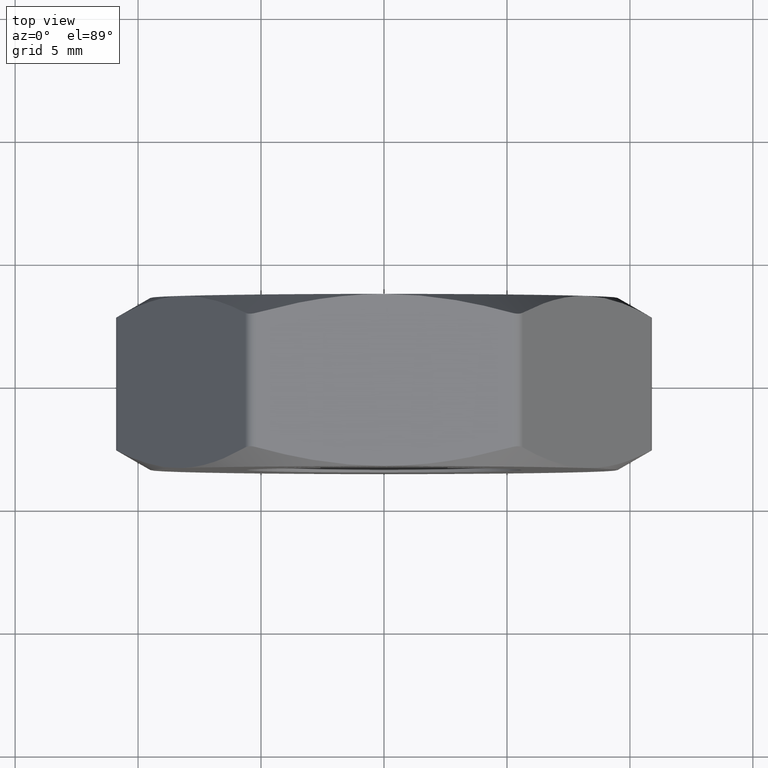
[diagram: clean part render]
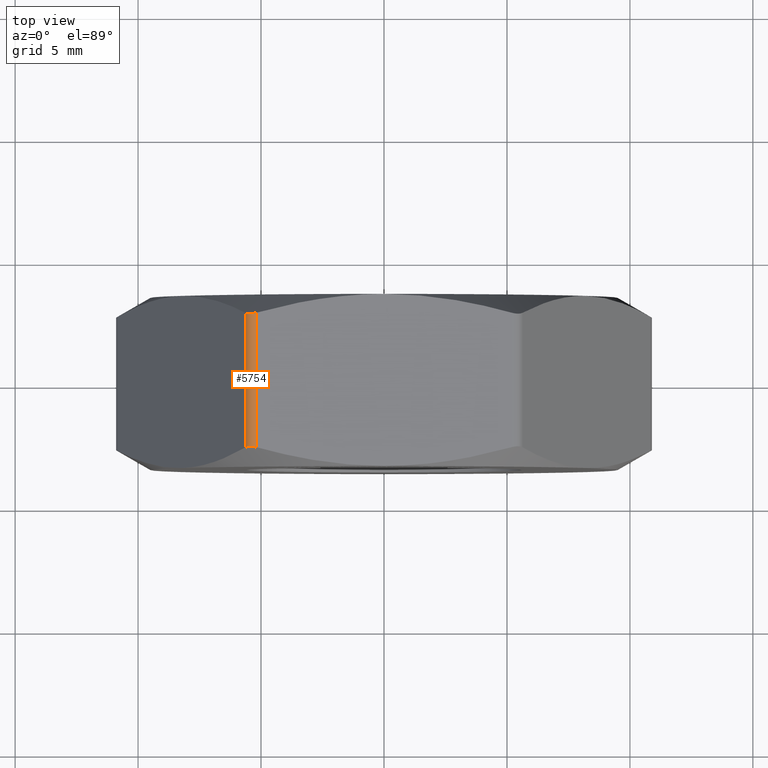
[diagram: same view with one face highlighted and labeled with its STEP entity id]
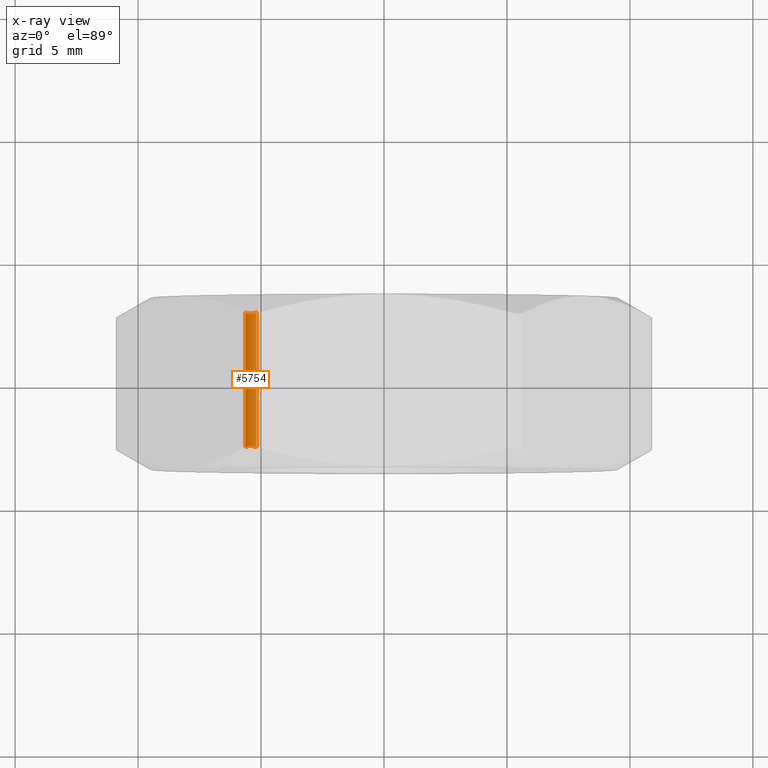
[diagram: x-ray of the same camera — body ghosted, the highlighted face saturated]
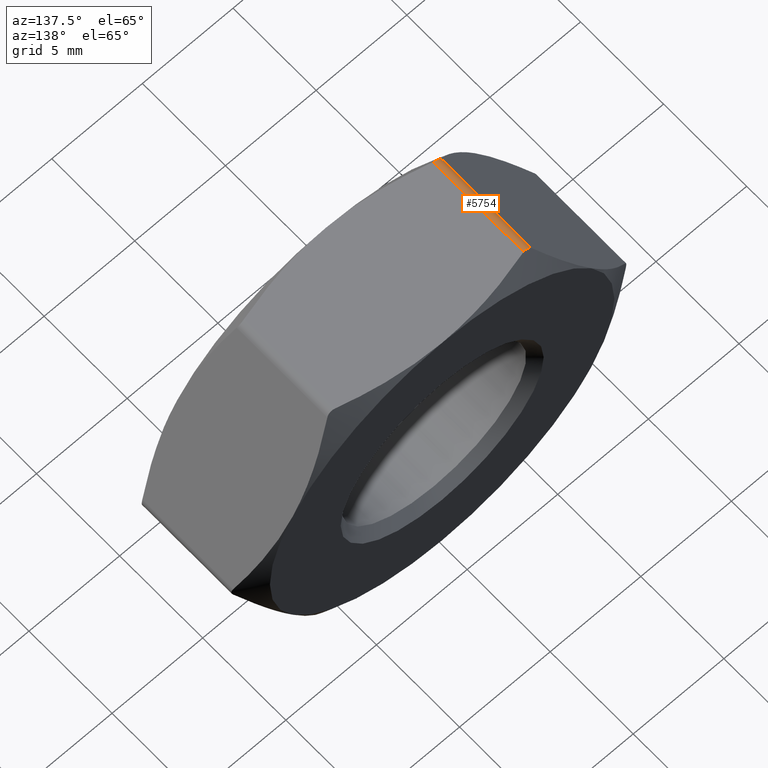
[diagram: same view with one face highlighted and labeled with its STEP entity id]
A machine part, top view. The second image highlights one B-rep face of the part: STEP entity #5754.
The next image is the same camera in x-ray: the body ghosted, the highlighted face saturated — about 0% of this face is hidden behind the body in this view.
A second angle (auxiliary view) of the same face is appended — the face is thin or edge-on in the first view.
In plain terms, the highlighted cylindrical surface (edge-blend (fillet) strip) has radius 0.5 mm, axis along (0, -1, 0).
Its self-contained STEP definition (entity closure, byte-faithful):
#240 = DIRECTION ( 'NONE',  ( 0.0000000000000000000, -1.000000000000000000, 0.0000000000000000000 ) ) ;
#693 = CARTESIAN_POINT ( 'NONE',  ( -5.586216033881830100, -2.709362655883565300, 9.324390007260763700 ) ) ;
#959 = EDGE_CURVE ( 'NONE', #9772, #6608, #6633, .T. ) ;
#1263 = CARTESIAN_POINT ( 'NONE',  ( -5.196152422707281300, -2.733161112797592600, 9.500000000000001800 ) ) ;
#1422 = CARTESIAN_POINT ( 'NONE',  ( -5.629165124598349800, 2.733161112797498400, 9.250000000000863300 ) ) ;
#1963 = ORIENTED_EDGE ( 'NONE', *, *, #11594, .F. ) ;
#3143 = CARTESIAN_POINT ( 'NONE',  ( -5.629165124598849000, -2.733161112797774200, 9.250000000000000000 ) ) ;
#3198 = CARTESIAN_POINT ( 'NONE',  ( -5.196152422707281300, -2.733161112797592600, 9.500000000000001800 ) ) ;
#3543 = CARTESIAN_POINT ( 'NONE',  ( -5.196152422706628500, 3.500000000000000000, 9.000000000000001800 ) ) ;
#4433 = B_SPLINE_CURVE_WITH_KNOTS ( 'NONE', 3,
 ( #7736, #8982, #9041, #11826, #5422, #15743 ),
 .UNSPECIFIED., .F., .F.,
 ( 4, 2, 4 ),
 ( 9.650992615314286700E-016, 0.0002637781458276249800, 0.0005275562916542848000 ),
 .UNSPECIFIED. ) ;
#4452 = CARTESIAN_POINT ( 'NONE',  ( -5.369432392636323200, -2.696196110277392600, 9.477215452927211500 ) ) ;
#4567 = CARTESIAN_POINT ( 'NONE',  ( -5.282019346758962000, -2.709371315874078000, 9.500000000000000000 ) ) ;
#5422 = CARTESIAN_POINT ( 'NONE',  ( -5.282050604140531300, 2.709362655883605300, 9.499999999999994700 ) ) ;
#5537 = EDGE_CURVE ( 'NONE', #15107, #9772, #6903, .T. ) ;
#5729 = DIRECTION ( 'NONE',  ( 0.0000000000000000000, 0.0000000000000000000, -1.000000000000000000 ) ) ;
#5754 = ADVANCED_FACE ( 'NONE', ( #12347 ), #11543, .T. ) ;
#6586 = AXIS2_PLACEMENT_3D ( 'NONE', #3543, #10084, #5729 ) ;
#6608 = VERTEX_POINT ( 'NONE', #16556 ) ;
#6633 = B_SPLINE_CURVE_WITH_KNOTS ( 'NONE', 3,
 ( #3198, #4567, #4452, #12269, #693, #3143 ),
 .UNSPECIFIED., .F., .F.,
 ( 4, 2, 4 ),
 ( 6.327872022629089200E-016, 0.0002637781458277957400, 0.0005275562916549586400 ),
 .UNSPECIFIED. ) ;
#6768 = CARTESIAN_POINT ( 'NONE',  ( -5.629165124598848100, 3.500000000000000000, 9.250000000000001800 ) ) ;
#6903 = LINE ( 'NONE', #14333, #9334 ) ;
#7736 = CARTESIAN_POINT ( 'NONE',  ( -5.629165124598349800, 2.733161112797498400, 9.250000000000863300 ) ) ;
#8982 = CARTESIAN_POINT ( 'NONE',  ( -5.586231662572763500, 2.709371315874028200, 9.324362937574012000 ) ) ;
#9041 = CARTESIAN_POINT ( 'NONE',  ( -5.522793143055214800, 2.696196110277409000, 9.388672582389711300 ) ) ;
#9334 = VECTOR ( 'NONE', #240, 1000.000000000000000 ) ;
#9374 = DIRECTION ( 'NONE',  ( -0.0000000000000000000, 1.000000000000000000, -0.0000000000000000000 ) ) ;
#9772 = VERTEX_POINT ( 'NONE', #1263 ) ;
#10084 = DIRECTION ( 'NONE',  ( 0.0000000000000000000, -1.000000000000000000, 0.0000000000000000000 ) ) ;
#10161 = LINE ( 'NONE', #6768, #13572 ) ;
#10820 = EDGE_LOOP ( 'NONE', ( #13543, #1963, #12733, #13892 ) ) ;
#11469 = CARTESIAN_POINT ( 'NONE',  ( -5.196152422707281300, 2.733161112797592600, 9.500000000000001800 ) ) ;
#11543 = CYLINDRICAL_SURFACE ( 'NONE', #6586, 0.5000000000000004400 ) ;
#11594 = EDGE_CURVE ( 'NONE', #6608, #13135, #10161, .T. ) ;
#11826 = CARTESIAN_POINT ( 'NONE',  ( -5.370289189536082500, 2.696108957237621800, 9.476903473387970700 ) ) ;
#12269 = CARTESIAN_POINT ( 'NONE',  ( -5.522094562399192200, -2.696108957237636000, 9.389258600500994600 ) ) ;
#12347 = FACE_OUTER_BOUND ( 'NONE', #10820, .T. ) ;
#12733 = ORIENTED_EDGE ( 'NONE', *, *, #959, .F. ) ;
#13135 = VERTEX_POINT ( 'NONE', #1422 ) ;
#13397 = EDGE_CURVE ( 'NONE', #13135, #15107, #4433, .T. ) ;
#13543 = ORIENTED_EDGE ( 'NONE', *, *, #13397, .F. ) ;
#13572 = VECTOR ( 'NONE', #9374, 1000.000000000000000 ) ;
#13892 = ORIENTED_EDGE ( 'NONE', *, *, #5537, .F. ) ;
#14333 = CARTESIAN_POINT ( 'NONE',  ( -5.196152422706628500, 3.500000000000000000, 9.500000000000001800 ) ) ;
#15107 = VERTEX_POINT ( 'NONE', #11469 ) ;
#15743 = CARTESIAN_POINT ( 'NONE',  ( -5.196152422707281300, 2.733161112797592600, 9.500000000000001800 ) ) ;
#16556 = CARTESIAN_POINT ( 'NONE',  ( -5.629165124598849000, -2.733161112797774200, 9.250000000000000000 ) ) ;